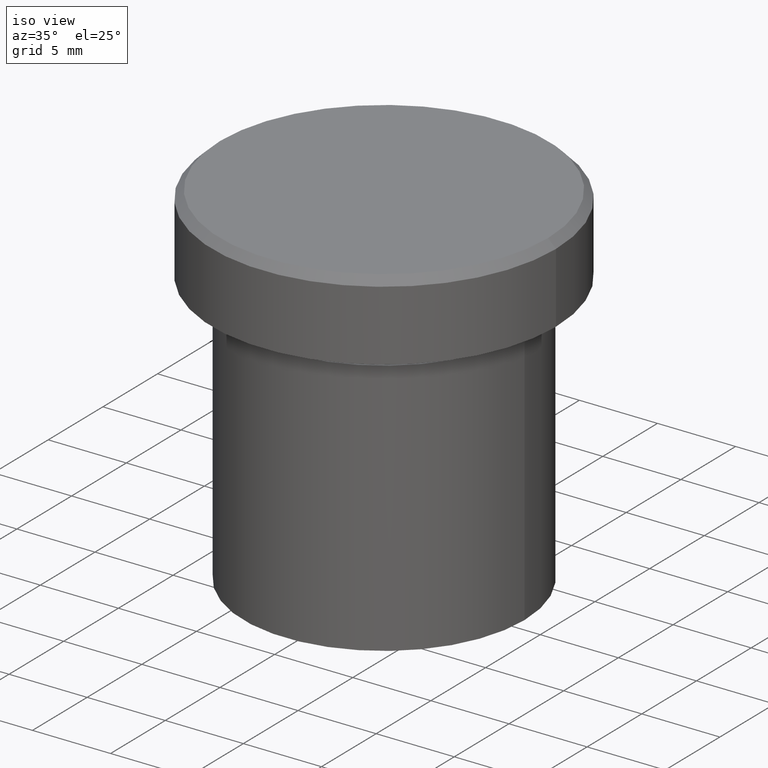
[diagram: clean part render]
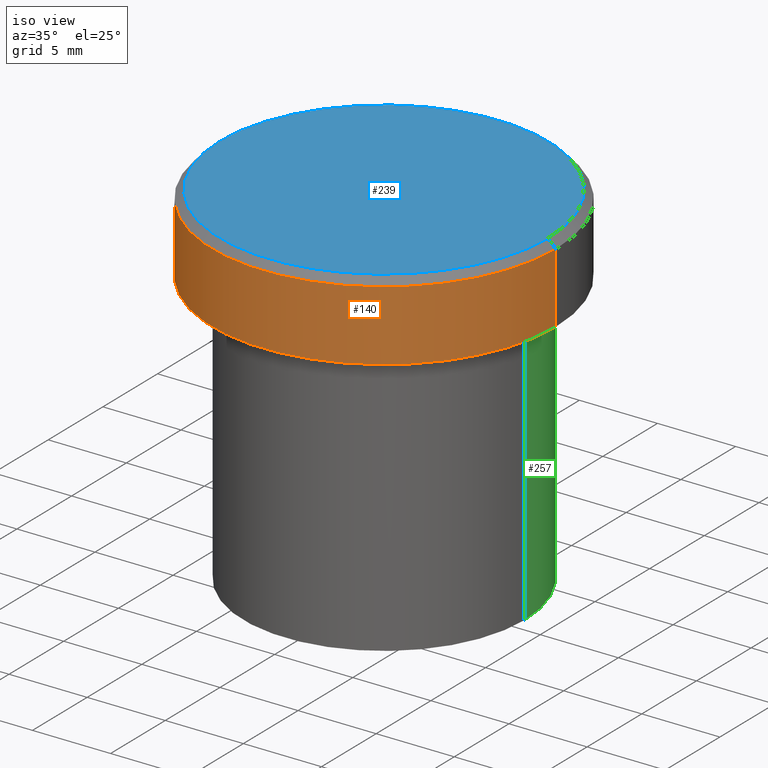
[diagram: same view with three faces highlighted in distinct colors, each labeled with its STEP entity id]
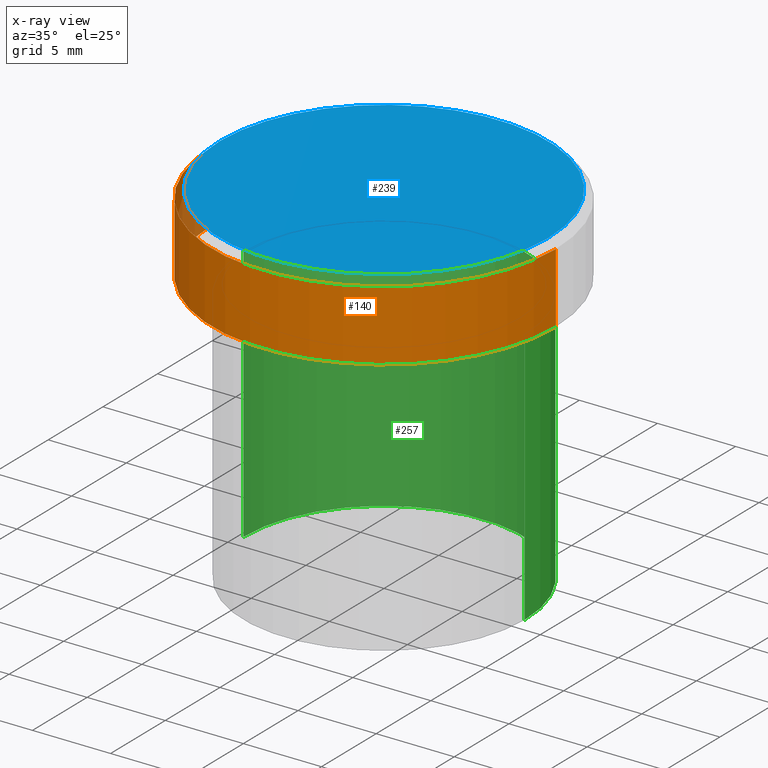
[diagram: x-ray of the same camera — body ghosted, the three highlighted faces saturated]
A machine part, iso view with three faces highlighted in distinct colors.
The next image is the same camera in x-ray (body ghosted, the three faces saturated) — at least one of them is partly hidden behind the body in this view.
Their STEP definitions:

[orange] entity #140 — the highlighted cylindrical surface (partial cylindrical patch) has radius 11 mm, axis along (-0, -0, 1).
#5 = VECTOR ( 'NONE', #340, 1000.000000000000000 ) ;
#11 = AXIS2_PLACEMENT_3D ( 'NONE', #70, #57, #294 ) ;
#14 = CARTESIAN_POINT ( 'NONE',  ( -11.00000000000000000, 1.347111479062088405E-15, -0.5000000000000004441 ) ) ;
#16 = LINE ( 'NONE', #191, #5 ) ;
#20 = CARTESIAN_POINT ( 'NONE',  ( 11.00000000000000000, 0.000000000000000000, -5.000000000000000000 ) ) ;
#51 = CARTESIAN_POINT ( 'NONE',  ( 0.000000000000000000, 0.000000000000000000, 0.000000000000000000 ) ) ;
#57 = DIRECTION ( 'NONE',  ( 0.000000000000000000, 0.000000000000000000, -1.000000000000000000 ) ) ;
#66 = EDGE_CURVE ( 'NONE', #213, #135, #133, .T. ) ;
#70 = CARTESIAN_POINT ( 'NONE',  ( 0.000000000000000000, 0.000000000000000000, -0.5000000000000004441 ) ) ;
#76 = EDGE_CURVE ( 'NONE', #90, #213, #16, .T. ) ;
#79 = DIRECTION ( 'NONE',  ( 1.000000000000000000, 0.000000000000000000, 0.000000000000000000 ) ) ;
#90 = VERTEX_POINT ( 'NONE', #20 ) ;
#124 = DIRECTION ( 'NONE',  ( 1.000000000000000000, 0.000000000000000000, 0.000000000000000000 ) ) ;
#133 = CIRCLE ( 'NONE', #11, 11.00000000000000000 ) ;
#135 = VERTEX_POINT ( 'NONE', #14 ) ;
#137 = FACE_OUTER_BOUND ( 'NONE', #356, .T. ) ;
#140 = ADVANCED_FACE ( 'NONE', ( #137 ), #320, .T. ) ;
#183 = EDGE_CURVE ( 'NONE', #268, #90, #336, .T. ) ;
#184 = LINE ( 'NONE', #312, #285 ) ;
#191 = CARTESIAN_POINT ( 'NONE',  ( 11.00000000000000000, 0.000000000000000000, 0.000000000000000000 ) ) ;
#213 = VERTEX_POINT ( 'NONE', #269 ) ;
#219 = AXIS2_PLACEMENT_3D ( 'NONE', #51, #392, #79 ) ;
#224 = CARTESIAN_POINT ( 'NONE',  ( -11.00000000000000000, 1.347111479062088405E-15, -5.000000000000000000 ) ) ;
#228 = ORIENTED_EDGE ( 'NONE', *, *, #76, .T. ) ;
#230 = ORIENTED_EDGE ( 'NONE', *, *, #183, .T. ) ;
#236 = ORIENTED_EDGE ( 'NONE', *, *, #66, .T. ) ;
#255 = DIRECTION ( 'NONE',  ( -0.000000000000000000, -0.000000000000000000, 1.000000000000000000 ) ) ;
#268 = VERTEX_POINT ( 'NONE', #224 ) ;
#269 = CARTESIAN_POINT ( 'NONE',  ( 11.00000000000000000, 0.000000000000000000, -0.5000000000000004441 ) ) ;
#272 = DIRECTION ( 'NONE',  ( -0.000000000000000000, -0.000000000000000000, 1.000000000000000000 ) ) ;
#285 = VECTOR ( 'NONE', #255, 1000.000000000000000 ) ;
#294 = DIRECTION ( 'NONE',  ( 1.000000000000000000, 0.000000000000000000, 0.000000000000000000 ) ) ;
#312 = CARTESIAN_POINT ( 'NONE',  ( -11.00000000000000000, 1.347111479062088405E-15, 0.000000000000000000 ) ) ;
#317 = EDGE_CURVE ( 'NONE', #268, #135, #184, .T. ) ;
#320 = CYLINDRICAL_SURFACE ( 'NONE', #219, 11.00000000000000000 ) ;
#336 = CIRCLE ( 'NONE', #358, 11.00000000000000000 ) ;
#340 = DIRECTION ( 'NONE',  ( -0.000000000000000000, -0.000000000000000000, 1.000000000000000000 ) ) ;
#356 = EDGE_LOOP ( 'NONE', ( #400, #230, #228, #236 ) ) ;
#358 = AXIS2_PLACEMENT_3D ( 'NONE', #367, #272, #124 ) ;
#367 = CARTESIAN_POINT ( 'NONE',  ( 0.000000000000000000, 0.000000000000000000, -5.000000000000000000 ) ) ;
#392 = DIRECTION ( 'NONE',  ( -0.000000000000000000, -0.000000000000000000, 1.000000000000000000 ) ) ;
#400 = ORIENTED_EDGE ( 'NONE', *, *, #317, .F. ) ;

[blue] entity #239 — the highlighted planar face has unit normal (0, -0, 1).
#12 = CARTESIAN_POINT ( 'NONE',  ( 10.49999999999999822, 1.316495309083404420E-15, 0.000000000000000000 ) ) ;
#19 = CARTESIAN_POINT ( 'NONE',  ( 0.000000000000000000, 0.000000000000000000, 0.000000000000000000 ) ) ;
#22 = CARTESIAN_POINT ( 'NONE',  ( -10.49999999999999822, 0.000000000000000000, 0.000000000000000000 ) ) ;
#27 = EDGE_LOOP ( 'NONE', ( #56, #158 ) ) ;
#56 = ORIENTED_EDGE ( 'NONE', *, *, #401, .T. ) ;
#59 = AXIS2_PLACEMENT_3D ( 'NONE', #305, #278, #125 ) ;
#87 = DIRECTION ( 'NONE',  ( -0.000000000000000000, -0.000000000000000000, 1.000000000000000000 ) ) ;
#89 = DIRECTION ( 'NONE',  ( 1.000000000000000000, 0.000000000000000000, 0.000000000000000000 ) ) ;
#101 = AXIS2_PLACEMENT_3D ( 'NONE', #266, #87, #298 ) ;
#117 = EDGE_CURVE ( 'NONE', #267, #189, #366, .T. ) ;
#125 = DIRECTION ( 'NONE',  ( 1.000000000000000000, 0.000000000000000000, 0.000000000000000000 ) ) ;
#143 = AXIS2_PLACEMENT_3D ( 'NONE', #19, #359, #89 ) ;
#158 = ORIENTED_EDGE ( 'NONE', *, *, #117, .T. ) ;
#178 = PLANE ( 'NONE',  #59 ) ;
#189 = VERTEX_POINT ( 'NONE', #22 ) ;
#200 = CIRCLE ( 'NONE', #101, 10.49999999999999822 ) ;
#239 = ADVANCED_FACE ( 'NONE', ( #308 ), #178, .T. ) ;
#266 = CARTESIAN_POINT ( 'NONE',  ( 0.000000000000000000, 0.000000000000000000, 0.000000000000000000 ) ) ;
#267 = VERTEX_POINT ( 'NONE', #12 ) ;
#278 = DIRECTION ( 'NONE',  ( 0.000000000000000000, -0.000000000000000000, 1.000000000000000000 ) ) ;
#298 = DIRECTION ( 'NONE',  ( 1.000000000000000000, 0.000000000000000000, 0.000000000000000000 ) ) ;
#305 = CARTESIAN_POINT ( 'NONE',  ( 0.000000000000000000, 0.000000000000000000, 0.000000000000000000 ) ) ;
#308 = FACE_OUTER_BOUND ( 'NONE', #27, .T. ) ;
#359 = DIRECTION ( 'NONE',  ( -0.000000000000000000, -0.000000000000000000, 1.000000000000000000 ) ) ;
#366 = CIRCLE ( 'NONE', #143, 10.49999999999999822 ) ;
#401 = EDGE_CURVE ( 'NONE', #189, #267, #200, .T. ) ;

[green] entity #257 — the highlighted cylindrical surface (partial cylindrical patch) has radius 9 mm, axis along (-0, -0, 1).
#4 = VERTEX_POINT ( 'NONE', #231 ) ;
#6 = CARTESIAN_POINT ( 'NONE',  ( 9.000000000000000000, 0.000000000000000000, -22.50000000000000000 ) ) ;
#15 = CARTESIAN_POINT ( 'NONE',  ( 9.000000000000000000, 0.000000000000000000, 0.000000000000000000 ) ) ;
#21 = DIRECTION ( 'NONE',  ( 1.000000000000000000, 0.000000000000000000, 0.000000000000000000 ) ) ;
#23 = CYLINDRICAL_SURFACE ( 'NONE', #259, 9.000000000000000000 ) ;
#32 = CARTESIAN_POINT ( 'NONE',  ( 0.000000000000000000, 0.000000000000000000, -22.50000000000000000 ) ) ;
#64 = CARTESIAN_POINT ( 'NONE',  ( -9.000000000000000000, 1.102182119232617714E-15, 0.000000000000000000 ) ) ;
#67 = VECTOR ( 'NONE', #364, 1000.000000000000000 ) ;
#74 = CARTESIAN_POINT ( 'NONE',  ( 0.000000000000000000, 0.000000000000000000, 0.000000000000000000 ) ) ;
#75 = AXIS2_PLACEMENT_3D ( 'NONE', #381, #295, #21 ) ;
#82 = CARTESIAN_POINT ( 'NONE',  ( -9.000000000000000000, 1.102182119232617714E-15, -22.50000000000000000 ) ) ;
#106 = ORIENTED_EDGE ( 'NONE', *, *, #379, .T. ) ;
#114 = DIRECTION ( 'NONE',  ( -0.000000000000000000, -0.000000000000000000, 1.000000000000000000 ) ) ;
#147 = LINE ( 'NONE', #64, #155 ) ;
#154 = DIRECTION ( 'NONE',  ( -0.000000000000000000, -0.000000000000000000, 1.000000000000000000 ) ) ;
#155 = VECTOR ( 'NONE', #182, 1000.000000000000000 ) ;
#164 = EDGE_CURVE ( 'NONE', #382, #4, #292, .T. ) ;
#182 = DIRECTION ( 'NONE',  ( -0.000000000000000000, -0.000000000000000000, 1.000000000000000000 ) ) ;
#231 = CARTESIAN_POINT ( 'NONE',  ( 9.000000000000000000, 0.000000000000000000, -6.000000000000000000 ) ) ;
#244 = EDGE_CURVE ( 'NONE', #382, #288, #347, .T. ) ;
#253 = CARTESIAN_POINT ( 'NONE',  ( -9.000000000000000000, 1.102182119232617714E-15, -6.000000000000000000 ) ) ;
#257 = ADVANCED_FACE ( 'NONE', ( #342 ), #23, .T. ) ;
#259 = AXIS2_PLACEMENT_3D ( 'NONE', #74, #114, #286 ) ;
#261 = ORIENTED_EDGE ( 'NONE', *, *, #396, .F. ) ;
#270 = ORIENTED_EDGE ( 'NONE', *, *, #244, .T. ) ;
#275 = VERTEX_POINT ( 'NONE', #253 ) ;
#286 = DIRECTION ( 'NONE',  ( 1.000000000000000000, 0.000000000000000000, 0.000000000000000000 ) ) ;
#288 = VERTEX_POINT ( 'NONE', #82 ) ;
#292 = LINE ( 'NONE', #15, #67 ) ;
#295 = DIRECTION ( 'NONE',  ( -0.000000000000000000, -0.000000000000000000, 1.000000000000000000 ) ) ;
#316 = ORIENTED_EDGE ( 'NONE', *, *, #164, .F. ) ;
#333 = CIRCLE ( 'NONE', #75, 9.000000000000000000 ) ;
#342 = FACE_OUTER_BOUND ( 'NONE', #375, .T. ) ;
#345 = AXIS2_PLACEMENT_3D ( 'NONE', #32, #154, #389 ) ;
#347 = CIRCLE ( 'NONE', #345, 9.000000000000000000 ) ;
#364 = DIRECTION ( 'NONE',  ( -0.000000000000000000, -0.000000000000000000, 1.000000000000000000 ) ) ;
#375 = EDGE_LOOP ( 'NONE', ( #270, #106, #261, #316 ) ) ;
#379 = EDGE_CURVE ( 'NONE', #288, #275, #147, .T. ) ;
#381 = CARTESIAN_POINT ( 'NONE',  ( 0.000000000000000000, 0.000000000000000000, -6.000000000000000000 ) ) ;
#382 = VERTEX_POINT ( 'NONE', #6 ) ;
#389 = DIRECTION ( 'NONE',  ( 1.000000000000000000, 0.000000000000000000, 0.000000000000000000 ) ) ;
#396 = EDGE_CURVE ( 'NONE', #4, #275, #333, .T. ) ;